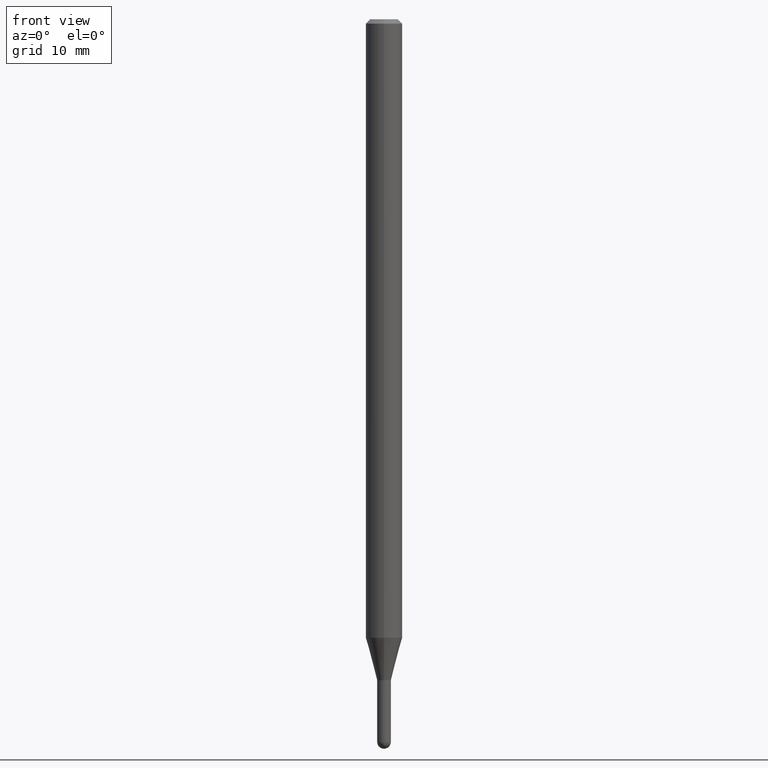
[diagram: clean part render]
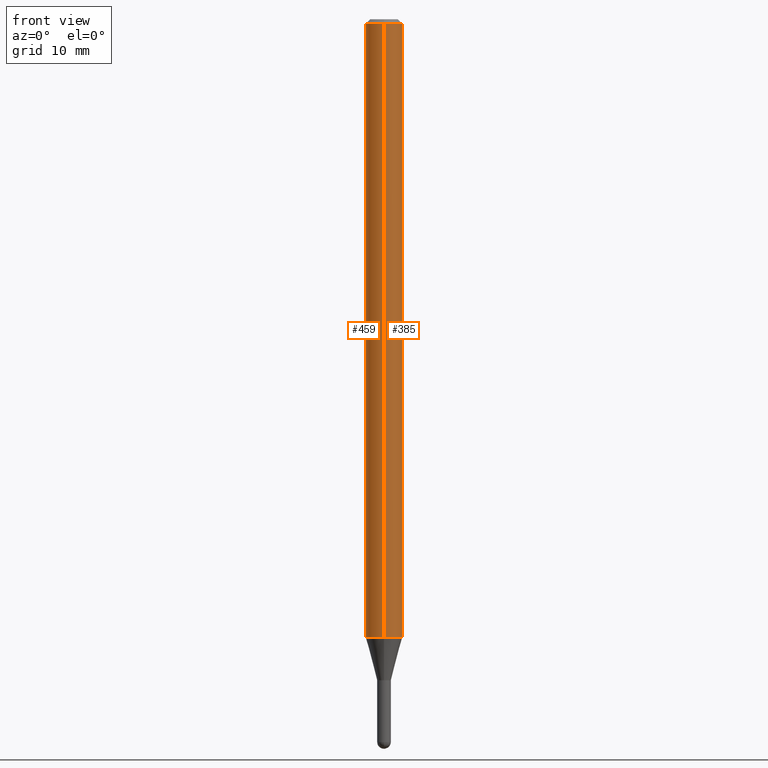
[diagram: same view with one multi-face feature highlighted, each face labeled with its STEP entity id]
A machine part, front view. The highlighted faces form ONE feature: a constant-radius fillet chain: 2 tangent blend faces with common blend radius 1.5875 mm. The faces share edges in the B-rep.
Their STEP definitions:
[1] entity #459 (Cylinder):
#8 = DIRECTION ( 'NONE',  ( -2.445458010321293800E-29, 3.491496799134631242E-15, 1.000000000000000000 ) ) ;
#14 = VERTEX_POINT ( 'NONE', #426 ) ;
#40 = AXIS2_PLACEMENT_3D ( 'NONE', #451, #96, #257 ) ;
#48 = VECTOR ( 'NONE', #457, 39.37007874015748143 ) ;
#62 = AXIS2_PLACEMENT_3D ( 'NONE', #441, #8, #366 ) ;
#76 = EDGE_CURVE ( 'NONE', #14, #467, #200, .T. ) ;
#85 = CARTESIAN_POINT ( 'NONE',  ( 5.183026025228223920E-29, -7.400052955535410422E-15, -2.119450018504819067 ) ) ;
#96 = DIRECTION ( 'NONE',  ( -2.445458010321293800E-29, 3.491496799134631242E-15, 1.000000000000000000 ) ) ;
#117 = AXIS2_PLACEMENT_3D ( 'NONE', #85, #242, #400 ) ;
#129 = CARTESIAN_POINT ( 'NONE',  ( 4.440892098501147796E-16, 0.06249999999999995837, -0.01500000000000022669 ) ) ;
#142 = ORIENTED_EDGE ( 'NONE', *, *, #379, .T. ) ;
#150 = DIRECTION ( 'NONE',  ( -2.445458010321293800E-29, 3.491496799134631242E-15, 1.000000000000000000 ) ) ;
#152 = CARTESIAN_POINT ( 'NONE',  ( -4.364351673553912750E-16, -0.06250000000000005551, -0.01499999999999979128 ) ) ;
#163 = EDGE_CURVE ( 'NONE', #194, #174, #313, .T. ) ;
#174 = VERTEX_POINT ( 'NONE', #152 ) ;
#179 = CYLINDRICAL_SURFACE ( 'NONE', #40, 0.06250000000000000000 ) ;
#194 = VERTEX_POINT ( 'NONE', #345 ) ;
#195 = VECTOR ( 'NONE', #150, 39.37007874015748143 ) ;
#200 = LINE ( 'NONE', #502, #195 ) ;
#212 = EDGE_LOOP ( 'NONE', ( #446, #142, #267, #380 ) ) ;
#242 = DIRECTION ( 'NONE',  ( -2.445458010321293800E-29, 3.491496799134631242E-15, 1.000000000000000000 ) ) ;
#257 = DIRECTION ( 'NONE',  ( -6.982962677686265922E-15, -1.000000000000000000, 3.491496799134631242E-15 ) ) ;
#267 = ORIENTED_EDGE ( 'NONE', *, *, #163, .T. ) ;
#289 = CIRCLE ( 'NONE', #62, 0.06250000000000000000 ) ;
#313 = LINE ( 'NONE', #509, #48 ) ;
#317 = EDGE_CURVE ( 'NONE', #467, #174, #289, .T. ) ;
#341 = CIRCLE ( 'NONE', #117, 0.06250000000000000000 ) ;
#345 = CARTESIAN_POINT ( 'NONE',  ( -4.364351673553400483E-16, -0.06250000000000742462, -2.119450018504819067 ) ) ;
#366 = DIRECTION ( 'NONE',  ( -6.982962677686265922E-15, -1.000000000000000000, 3.483106191921935554E-15 ) ) ;
#379 = EDGE_CURVE ( 'NONE', #14, #194, #341, .T. ) ;
#380 = ORIENTED_EDGE ( 'NONE', *, *, #317, .F. ) ;
#400 = DIRECTION ( 'NONE',  ( -6.982962677686265922E-15, -1.000000000000000000, 4.370956789862821150E-15 ) ) ;
#426 = CARTESIAN_POINT ( 'NONE',  ( 4.440892098501141880E-16, 0.06249999999999258232, -2.119450018504819511 ) ) ;
#441 = CARTESIAN_POINT ( 'NONE',  ( 3.668187015481942626E-31, -5.237245198701949674E-17, -0.01500000000000000812 ) ) ;
#446 = ORIENTED_EDGE ( 'NONE', *, *, #76, .F. ) ;
#451 = CARTESIAN_POINT ( 'NONE',  ( 0.000000000000000000, 0.000000000000000000, 0.000000000000000000 ) ) ;
#457 = DIRECTION ( 'NONE',  ( -2.445458010321293800E-29, 3.491496799134631242E-15, 1.000000000000000000 ) ) ;
#459 = ADVANCED_FACE ( 'NONE', ( #484 ), #179, .T. ) ;
#467 = VERTEX_POINT ( 'NONE', #129 ) ;
#484 = FACE_OUTER_BOUND ( 'NONE', #212, .T. ) ;
#502 = CARTESIAN_POINT ( 'NONE',  ( 4.440892098500625669E-16, 0.06250000000000000000, -2.182185499459144526E-16 ) ) ;
#509 = CARTESIAN_POINT ( 'NONE',  ( -4.364351673553916201E-16, -0.06250000000000000000, 2.182185499459144526E-16 ) ) ;
[2] entity #385 (Cylinder):
#1 = ORIENTED_EDGE ( 'NONE', *, *, #442, .T. ) ;
#7 = DIRECTION ( 'NONE',  ( -2.445458010321293800E-29, 3.491496799134631242E-15, 1.000000000000000000 ) ) ;
#14 = VERTEX_POINT ( 'NONE', #426 ) ;
#20 = CARTESIAN_POINT ( 'NONE',  ( 5.183026025228223920E-29, -7.400052955535410422E-15, -2.119450018504819067 ) ) ;
#28 = AXIS2_PLACEMENT_3D ( 'NONE', #119, #7, #479 ) ;
#36 = DIRECTION ( 'NONE',  ( -6.982962677686265922E-15, -1.000000000000000000, 3.483106191921935554E-15 ) ) ;
#48 = VECTOR ( 'NONE', #457, 39.37007874015748143 ) ;
#76 = EDGE_CURVE ( 'NONE', #14, #467, #200, .T. ) ;
#99 = ORIENTED_EDGE ( 'NONE', *, *, #76, .T. ) ;
#119 = CARTESIAN_POINT ( 'NONE',  ( 0.000000000000000000, 0.000000000000000000, 0.000000000000000000 ) ) ;
#128 = FACE_OUTER_BOUND ( 'NONE', #397, .T. ) ;
#129 = CARTESIAN_POINT ( 'NONE',  ( 4.440892098501147796E-16, 0.06249999999999995837, -0.01500000000000022669 ) ) ;
#144 = AXIS2_PLACEMENT_3D ( 'NONE', #354, #469, #36 ) ;
#150 = DIRECTION ( 'NONE',  ( -2.445458010321293800E-29, 3.491496799134631242E-15, 1.000000000000000000 ) ) ;
#152 = CARTESIAN_POINT ( 'NONE',  ( -4.364351673553912750E-16, -0.06250000000000005551, -0.01499999999999979128 ) ) ;
#163 = EDGE_CURVE ( 'NONE', #194, #174, #313, .T. ) ;
#174 = VERTEX_POINT ( 'NONE', #152 ) ;
#176 = CIRCLE ( 'NONE', #144, 0.06250000000000000000 ) ;
#178 = AXIS2_PLACEMENT_3D ( 'NONE', #20, #449, #329 ) ;
#194 = VERTEX_POINT ( 'NONE', #345 ) ;
#195 = VECTOR ( 'NONE', #150, 39.37007874015748143 ) ;
#200 = LINE ( 'NONE', #502, #195 ) ;
#241 = ORIENTED_EDGE ( 'NONE', *, *, #245, .F. ) ;
#245 = EDGE_CURVE ( 'NONE', #174, #467, #176, .T. ) ;
#291 = CYLINDRICAL_SURFACE ( 'NONE', #28, 0.06250000000000000000 ) ;
#313 = LINE ( 'NONE', #509, #48 ) ;
#329 = DIRECTION ( 'NONE',  ( -6.982962677686265922E-15, -1.000000000000000000, 4.370956789862821150E-15 ) ) ;
#332 = CIRCLE ( 'NONE', #178, 0.06250000000000000000 ) ;
#345 = CARTESIAN_POINT ( 'NONE',  ( -4.364351673553400483E-16, -0.06250000000000742462, -2.119450018504819067 ) ) ;
#354 = CARTESIAN_POINT ( 'NONE',  ( 3.668187015481942626E-31, -5.237245198701949674E-17, -0.01500000000000000812 ) ) ;
#385 = ADVANCED_FACE ( 'NONE', ( #128 ), #291, .T. ) ;
#393 = ORIENTED_EDGE ( 'NONE', *, *, #163, .F. ) ;
#397 = EDGE_LOOP ( 'NONE', ( #1, #99, #241, #393 ) ) ;
#426 = CARTESIAN_POINT ( 'NONE',  ( 4.440892098501141880E-16, 0.06249999999999258232, -2.119450018504819511 ) ) ;
#442 = EDGE_CURVE ( 'NONE', #194, #14, #332, .T. ) ;
#449 = DIRECTION ( 'NONE',  ( -2.445458010321293800E-29, 3.491496799134631242E-15, 1.000000000000000000 ) ) ;
#457 = DIRECTION ( 'NONE',  ( -2.445458010321293800E-29, 3.491496799134631242E-15, 1.000000000000000000 ) ) ;
#467 = VERTEX_POINT ( 'NONE', #129 ) ;
#469 = DIRECTION ( 'NONE',  ( -2.445458010321293800E-29, 3.491496799134631242E-15, 1.000000000000000000 ) ) ;
#479 = DIRECTION ( 'NONE',  ( -6.982962677686265922E-15, -1.000000000000000000, 3.491496799134631242E-15 ) ) ;
#502 = CARTESIAN_POINT ( 'NONE',  ( 4.440892098500625669E-16, 0.06250000000000000000, -2.182185499459144526E-16 ) ) ;
#509 = CARTESIAN_POINT ( 'NONE',  ( -4.364351673553916201E-16, -0.06250000000000000000, 2.182185499459144526E-16 ) ) ;